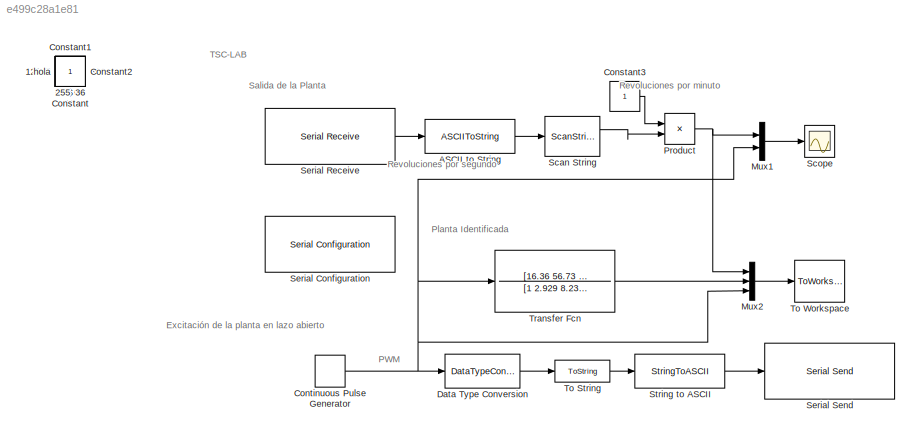
MODEL slx_e499c28a1e81
KIND model
CONFIG AbsTol = auto
CONFIG EnableMultiTasking = off
CONFIG FixedStep = auto
CONFIG MaxStep = auto
CONFIG MinStep = auto
CONFIG RelTol = 1e-3
CONFIG SampleTimeConstraint = Unconstrained
CONFIG SolverName = VariableStepAuto
CONFIG StartTime = 0.0
CONFIG StopTime = 200
BLOCK [Constant] $
  IOType = siggen
  Value = 36
BLOCK [Constant] ,
  IOType = siggen
  Value = 44
BLOCK [Constant] 0
  IOType = siggen
BLOCK [Constant] 0A
  IOType = siggen
  Value = 10
BLOCK [Constant] 0D
  IOType = siggen
  Value = 13
BLOCK [Constant] 10
  IOType = siggen
BLOCK [Constant] 12345
  IOType = siggen
BLOCK [Constant] 13
  IOType = siggen
  Value = 13
BLOCK [Constant] 255
  IOType = siggen
BLOCK [Constant] 311
  IOType = siggen
BLOCK [Constant] 36
  IOType = siggen
  Value = 36
BLOCK [ASCIIToString] ASCII to String
BLOCK [Constant] Constant
  IOType = siggen
BLOCK [Constant] Constant1
  IOType = siggen
BLOCK [Constant] Constant2
  IOType = siggen
BLOCK [Constant] Constant3
BLOCK [DiscretePulseGenerator] Continuous Pulse Generator
  Amplitude = 255
  Period = 24
  Ports = [0, 1]
  PulseType = Time based
  PulseWidth = 50
BLOCK [DataTypeConversion] Data Type Conversion
  OutDataTypeStr = uint8
  RndMeth = Floor
  SaturateOnIntegerOverflow = off
BLOCK [Mux] Mux1
  DisplayOption = bar
  Inputs = 2
  Ports = [2, 1]
BLOCK [Mux] Mux2
  DisplayOption = bar
  Inputs = 3
  Ports = [3, 1]
BLOCK [Product] Product
  Ports = [2, 1]
BLOCK [ScanString] Scan String
  Format = "%d %f"
  Ports = [1, 2]
BLOCK [Scope] Scope
  Floating = off
  NumInputPorts = 1
  Ports = [1]
  ScopeSpecificationString = Simulink.scopes.TimeScopeBlockCfg('CurrentConfiguration', extmgr.ConfigurationSet(extmgr.Configuration('Core','General UI',true),extmgr.Configuration('Core','Source UI',true),extmgr.Configuration('Sources','WiredSimulink',true),extmgr.Configuration('Visuals','Time Domain',true,'SerializedDisplays',{struct('MinYLimReal','-798.5','MaxYLimReal','7186.5','YLabelReal','','MinYLimMag',' 0.00000','MaxYLi...<+1455ch>
BLOCK [Reference] Serial Configuration  REF=instrumentseriallib/Serial Configuration
  Ports = []
  Priority = -200000
  SourceBlock = instrumentseriallib/Serial Configuration
  SourceProductBaseCode = IC
  SourceType = matlabshared.seriallib.internal.system.SerialConfiguration
BLOCK [Reference] Serial Receive  REF=instrumentseriallib/Serial Receive
  Ports = [0, 1]
  SourceBlock = instrumentseriallib/Serial Receive
  SourceProductBaseCode = IC
  SourceType = matlabshared.seriallib.internal.system.SerialReceive
BLOCK [Reference] Serial Send  REF=instrumentseriallib/Serial Send
  Ports = [1]
  SourceBlock = instrumentseriallib/Serial Send
  SourceProductBaseCode = IC
  SourceType = matlabshared.seriallib.internal.system.SerialSend
BLOCK [StringToASCII] String to ASCII
BLOCK [ToString] To String
BLOCK [ToWorkspace] To Workspace
  MaxDataPoints = inf
  Ports = [1]
  SampleTime = -1
  Save2DSignal = 2-D array (concatenate along first dimension)
  VariableName = yout
BLOCK [TransferFcn] Transfer Fcn
  Denominator = [1 2.929 8.234 6.306 1.743]
  Numerator = [16.36 56.73 145.3 150 53.79]
BLOCK [Constant] hola
  IOType = siggen
ANNOTATION (root): Excitación de la planta en lazo abierto
ANNOTATION (root): PWM
ANNOTATION (root): Planta Identificada
ANNOTATION (root): Revoluciones por minuto
ANNOTATION (root): Revoluciones por segundo
ANNOTATION (root): Salida de la Planta
ANNOTATION (root): TSC-LAB
LINE ASCII to String:1 -> Scan String:1
LINE Constant3:1 -> Product:1
NET Continuous Pulse Generator:1 -> Data Type Conversion:1, Mux1:2, Mux2:3, Transfer Fcn:1
LINE Data Type Conversion:1 -> To String:1
LINE Mux1:1 -> Scope:1
LINE Mux2:1 -> To Workspace:1
NET Product:1 -> Mux1:1, Mux2:1
LINE Scan String:1 -> Product:2
LINE Serial Receive:1 -> ASCII to String:1
LINE String to ASCII:1 -> Serial Send:1
LINE To String:1 -> String to ASCII:1
LINE Transfer Fcn:1 -> Mux2:2
note: NET lines group one-source signal fan-out (src -> all destinations, sorted); 1:1 wires keep LINE
